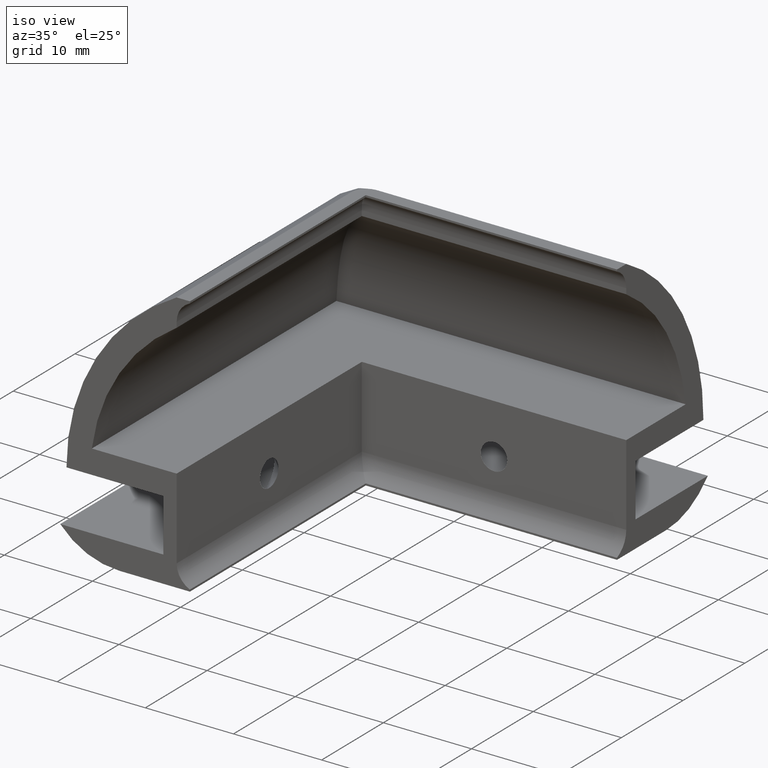
[diagram: clean part render]
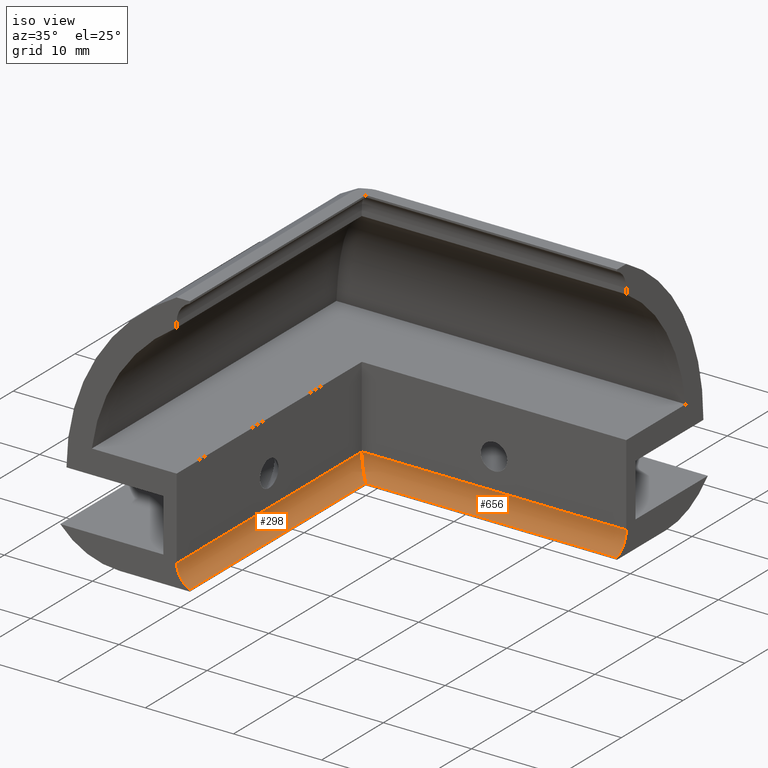
[diagram: same view with one multi-face feature highlighted, each face labeled with its STEP entity id]
A machine part, iso view. The highlighted faces form ONE feature: a constant-radius fillet chain: 2 tangent blend faces with common blend radius 2.5 mm. The faces share edges in the B-rep.
Their STEP definitions:
[1] entity #656 (Cylinder):
#241=CARTESIAN_POINT('',(0.0,0.0,0.208712152522025));
#242=VERTEX_POINT('',#241);
#272=CARTESIAN_POINT('',(-1.500000000000000,1.500000000000096,2.499999999999999));
#273=VERTEX_POINT('',#272);
#274=CARTESIAN_POINT('',(1.0,-1.0,2.499999999999999));
#275=DIRECTION('',(0.707106781186548,0.707106781186547,-4.329780E-017));
#276=DIRECTION('',(0.707106781186547,-0.707106781186548,4.329780E-017));
#277=AXIS2_PLACEMENT_3D('',#274,#275,#276);
#278=ELLIPSE('',#277,3.535533905932739,2.500000000000000);
#279=EDGE_CURVE('',#242,#273,#278,.T.);
#608=CARTESIAN_POINT('',(28.500006930995369,1.261213E-013,0.208712152522025));
#609=VERTEX_POINT('',#608);
#616=CARTESIAN_POINT('',(28.500006930995369,1.261213E-013,0.208712152522025));
#617=DIRECTION('',(-1.0,0.0,0.0));
#618=VECTOR('',#617,28.500006930995344);
#619=LINE('',#616,#618);
#620=EDGE_CURVE('',#609,#242,#619,.T.);
#632=CARTESIAN_POINT('',(28.500006930995369,-0.999999999999853,2.499999999999999));
#633=DIRECTION('',(1.0,6.123234E-017,-3.749399E-033));
#634=DIRECTION('',(-2.449294E-017,0.399999999999992,-0.916515138991172));
#635=AXIS2_PLACEMENT_3D('',#632,#633,#634);
#636=CYLINDRICAL_SURFACE('',#635,2.500000000000000);
#637=CARTESIAN_POINT('',(28.500006930995369,1.500000000000147,2.499999999999999));
#638=VERTEX_POINT('',#637);
#639=CARTESIAN_POINT('',(28.500006930995369,-0.999999999999853,2.499999999999999));
#640=DIRECTION('',(1.0,6.123234E-017,-3.749399E-033));
#641=DIRECTION('',(-6.123234E-017,1.0,-6.123234E-017));
#642=AXIS2_PLACEMENT_3D('',#639,#640,#641);
#643=CIRCLE('',#642,2.500000000000000);
#644=EDGE_CURVE('',#609,#638,#643,.T.);
#645=ORIENTED_EDGE('',*,*,#644,.T.);
#646=CARTESIAN_POINT('',(28.500006930995369,1.500000000000147,2.499999999999999));
#647=DIRECTION('',(-1.0,0.0,0.0));
#648=VECTOR('',#647,30.000006930995433);
#649=LINE('',#646,#648);
#650=EDGE_CURVE('',#638,#273,#649,.T.);
#651=ORIENTED_EDGE('',*,*,#650,.T.);
#652=ORIENTED_EDGE('',*,*,#279,.F.);
#653=ORIENTED_EDGE('',*,*,#620,.F.);
#654=EDGE_LOOP('',(#645,#651,#652,#653));
#655=FACE_OUTER_BOUND('',#654,.T.);
#656=ADVANCED_FACE('',(#655),#636,.F.);
[2] entity #298 (Cylinder):
#241=CARTESIAN_POINT('',(0.0,0.0,0.208712152522025));
#242=VERTEX_POINT('',#241);
#249=CARTESIAN_POINT('',(0.0,-28.499999999999858,0.208712152522026));
#250=VERTEX_POINT('',#249);
#251=CARTESIAN_POINT('',(0.0,0.0,0.208712152522026));
#252=DIRECTION('',(0.0,-1.0,0.0));
#253=VECTOR('',#252,28.499999999999854);
#254=LINE('',#251,#253);
#255=EDGE_CURVE('',#242,#250,#254,.T.);
#266=CARTESIAN_POINT('',(1.0,16.000000000000146,2.499999999999999));
#267=DIRECTION('',(0.0,1.0,-6.123234E-017));
#268=DIRECTION('',(-0.399999999999992,-5.612037E-017,-0.916515138991172));
#269=AXIS2_PLACEMENT_3D('',#266,#267,#268);
#270=CYLINDRICAL_SURFACE('',#269,2.500000000000000);
#271=ORIENTED_EDGE('',*,*,#255,.F.);
#272=CARTESIAN_POINT('',(-1.500000000000000,1.500000000000096,2.499999999999999));
#273=VERTEX_POINT('',#272);
#274=CARTESIAN_POINT('',(1.0,-1.0,2.499999999999999));
#275=DIRECTION('',(0.707106781186548,0.707106781186547,-4.329780E-017));
#276=DIRECTION('',(0.707106781186547,-0.707106781186548,4.329780E-017));
#277=AXIS2_PLACEMENT_3D('',#274,#275,#276);
#278=ELLIPSE('',#277,3.535533905932739,2.500000000000000);
#279=EDGE_CURVE('',#242,#273,#278,.T.);
#280=ORIENTED_EDGE('',*,*,#279,.T.);
#281=CARTESIAN_POINT('',(-1.500000000000000,-28.499999999999858,2.500000000000001));
#282=VERTEX_POINT('',#281);
#283=CARTESIAN_POINT('',(-1.500000000000000,1.500000000000096,2.500000000000000));
#284=DIRECTION('',(0.0,-1.0,0.0));
#285=VECTOR('',#284,29.999999999999950);
#286=LINE('',#283,#285);
#287=EDGE_CURVE('',#273,#282,#286,.T.);
#288=ORIENTED_EDGE('',*,*,#287,.T.);
#289=CARTESIAN_POINT('',(1.0,-28.499999999999858,2.500000000000001));
#290=DIRECTION('',(0.0,1.0,-6.123234E-017));
#291=DIRECTION('',(-1.0,0.0,0.0));
#292=AXIS2_PLACEMENT_3D('',#289,#290,#291);
#293=CIRCLE('',#292,2.500000000000000);
#294=EDGE_CURVE('',#250,#282,#293,.T.);
#295=ORIENTED_EDGE('',*,*,#294,.F.);
#296=EDGE_LOOP('',(#271,#280,#288,#295));
#297=FACE_OUTER_BOUND('',#296,.T.);
#298=ADVANCED_FACE('',(#297),#270,.F.);